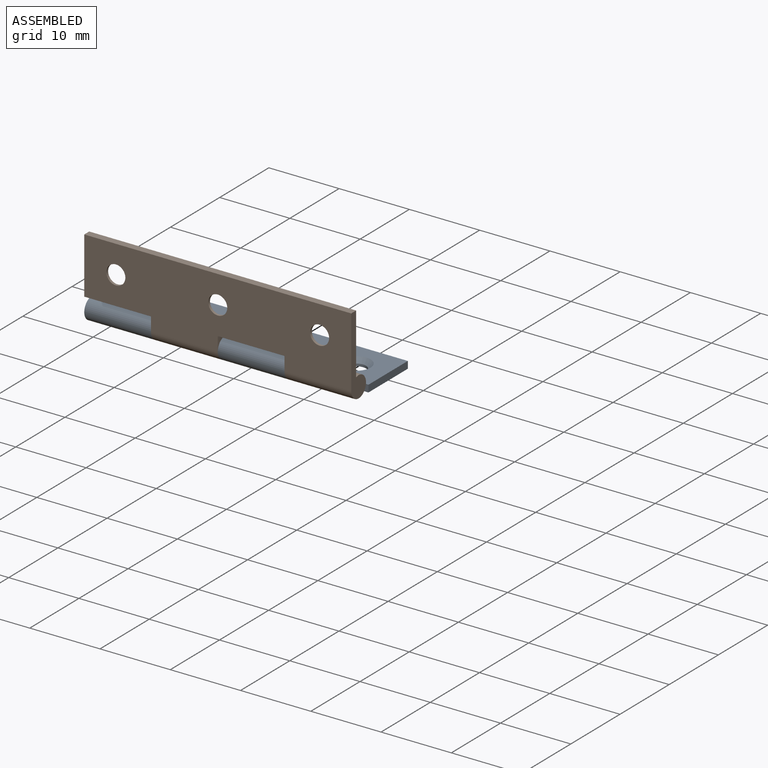
[diagram: assembled view]
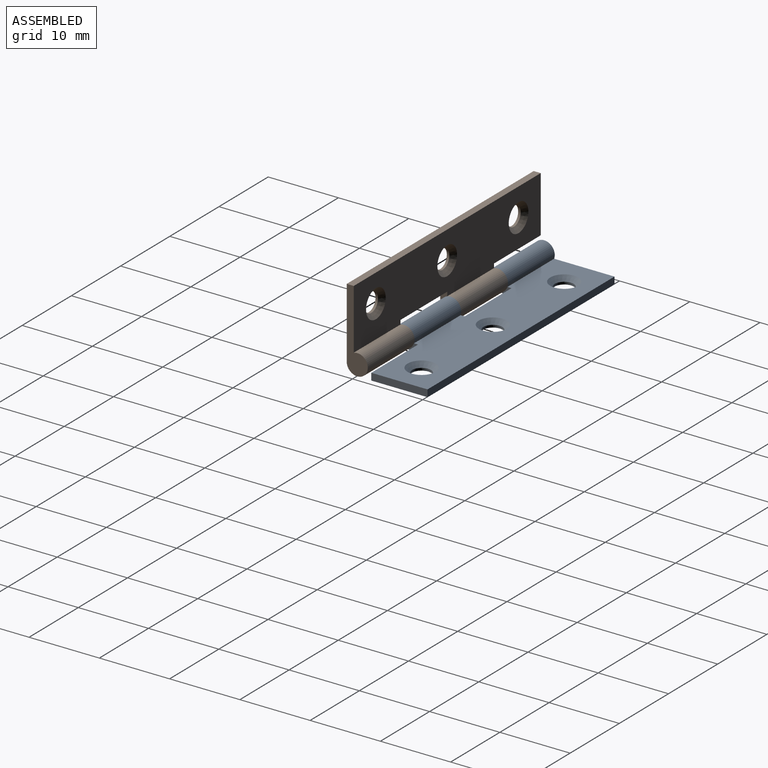
[diagram: assembled view, second angle]
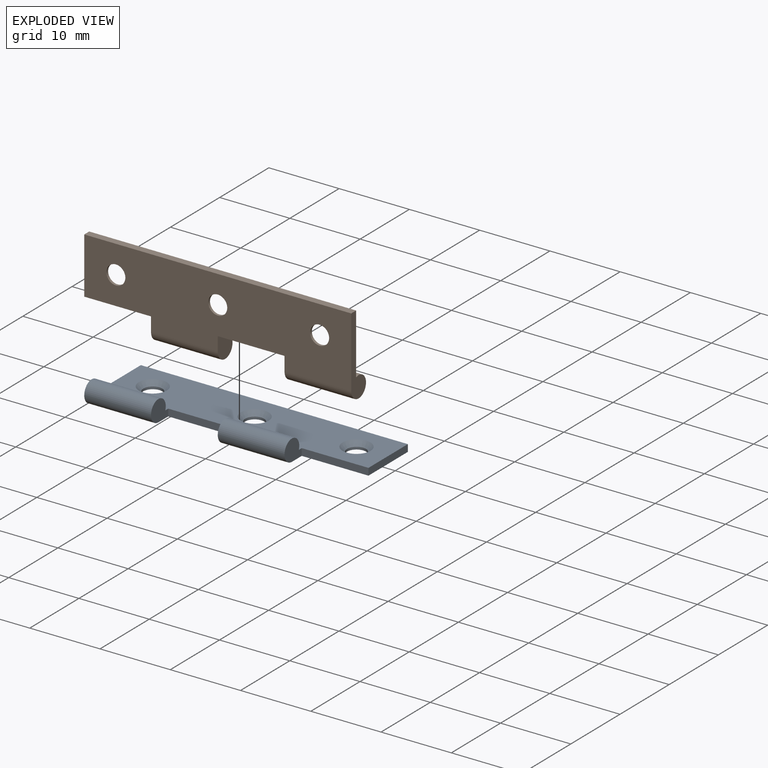
[diagram: exploded view]
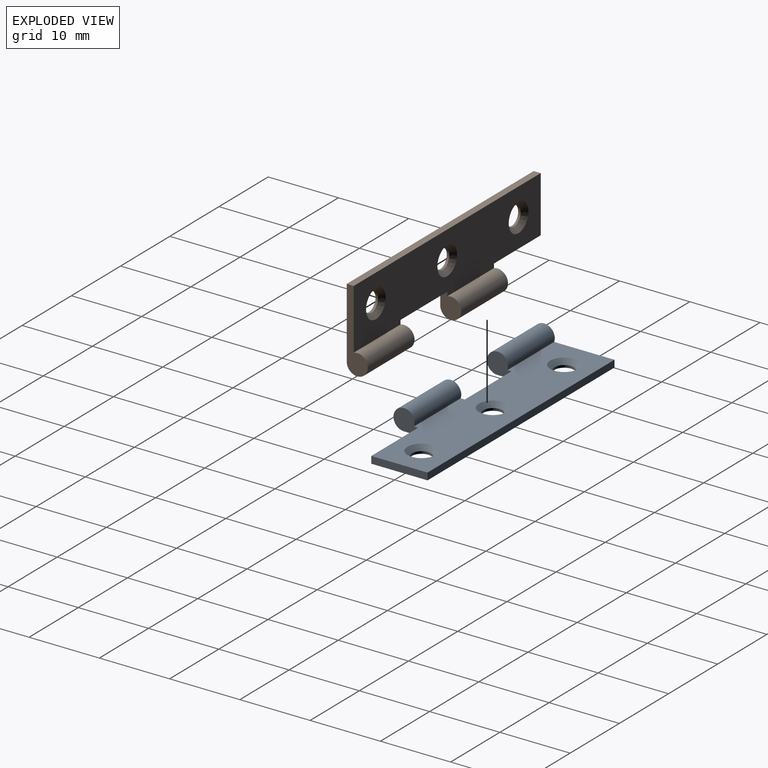
[diagram: exploded view, second angle]
ASSEMBLY  parts=2 mates=2
PART A: 18 faces, bbox 38x11.5x3 mm
  f0: plane 38x8.59mm, normal (0,0,1), area 277.4mm2, adj f2,f3,f4,f5,f6,f7,f8,f9
  f1: plane 38x10mm, normal (0,0,-1), area 324.8mm2, adj f2,f3,f4,f5,f6,f7,f8,f9
  f2: cylinder r=1.5mm len=9.5mm, axis (-1,0,0), area 72mm2, adj f0,f1,f3,f10
  f3: plane 11.5x3mm, normal (-1,0,0), area 16mm2, adj f0,f1,f2,f5
  f4: plane 8x1mm, normal (1,0,0), area 8mm2, adj f0,f1,f5,f7
  f5: plane 38x1mm, normal (0,1,0), area 38mm2, adj f0,f1,f3,f4
  f6: cylinder r=1.5mm len=9.5mm, axis (-1,0,0), area 72mm2, adj f0,f1,f8,f11
  f7: plane 9.5x1mm, normal (0,-1,0), area 9.5mm2, adj f0,f1,f4,f8
  f8: plane 3.5x3mm, normal (1,0,0), area 8mm2, adj f0,f1,f6,f7
  f9: plane 9.5x1mm, normal (0,-1,0), area 9.5mm2, adj f0,f1,f10,f11
  f10: plane 3.5x3mm, normal (1,0,0), area 8mm2, adj f0,f1,f2,f9
  f11: plane 3.5x3mm, normal (-1,0,0), area 8mm2, adj f0,f1,f6,f9
  f12: cylinder r=1.35mm len=2.7mm, axis (0,0,1), area 3mm2, adj f1,f13
  f13: cone r=1.35mm half-angle=45deg, axis (0,0,1), area 9.7mm2, adj f0,f12
  f14: cylinder r=1.35mm len=2.7mm, axis (0,0,1), area 3mm2, adj f1,f15
  f15: cone r=1.35mm half-angle=45deg, axis (0,0,1), area 9.7mm2, adj f0,f14
  f16: cylinder r=1.35mm len=2.7mm, axis (0,0,1), area 3mm2, adj f1,f17
  f17: cone r=1.35mm half-angle=45deg, axis (0,0,1), area 9.7mm2, adj f0,f16
PART B: same geometry as A
PLACE A t=(0,-6,0)mm fixed
PLACE B rot(axis=(0,0.71,0.71),180deg) t=(0,-7.5,1.5)mm
MATE planar A.f3 <-> B.f4  axis (-1,0,0) through (-19,-1,0)mm
MATE cylindrical B.f2 <-> A.f2  axis (1,0,0) through (-4.75,-6,1.5)mm
